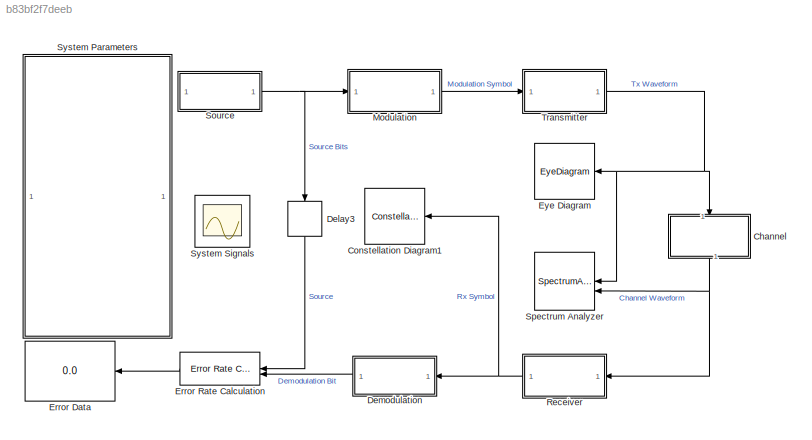
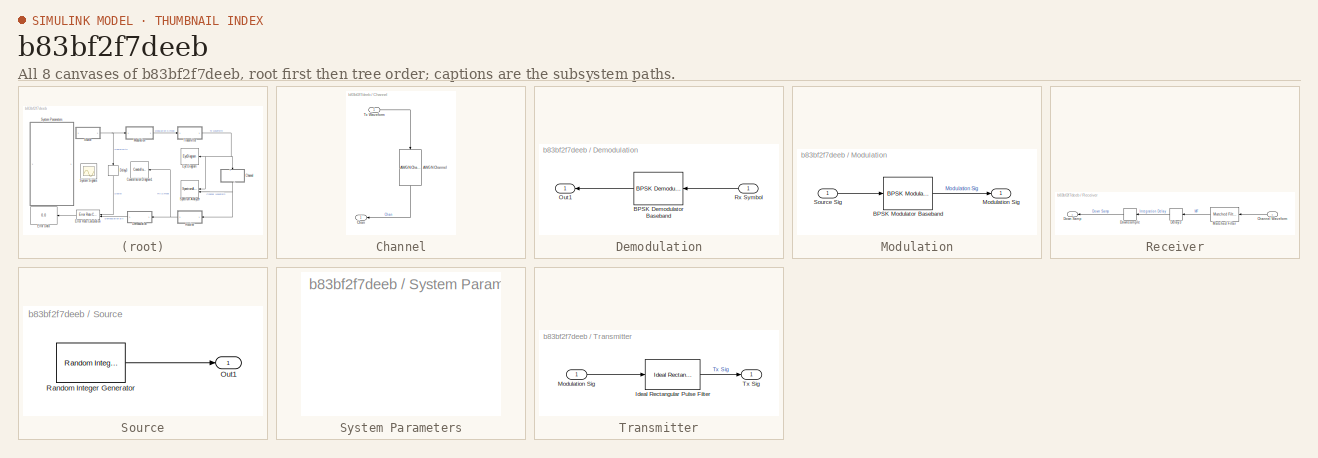
[diagram: thumbnail index - all 8 canvases of the model, root first then tree order]
MODEL slx_b83bf2f7deeb
KIND model
CONFIG AbsTol = auto
CONFIG EnableMultiTasking = off
CONFIG FixedStep = SimPara.SysPeriod
CONFIG MaxStep = auto
CONFIG MinStep = auto
CONFIG RelTol = 1e-3
CONFIG SampleTimeConstraint = Unconstrained
CONFIG SolverName = FixedStepDiscrete
CONFIG StartTime = 0.0
CONFIG StopTime = 100
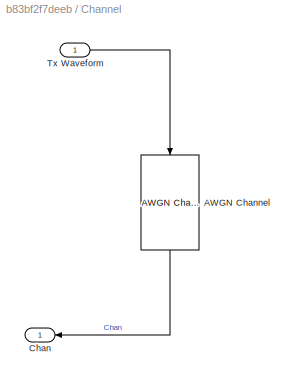
BLOCK [SubSystem] Channel
  NameLocation = top
BLOCK [Reference] Channel/AWGN Channel  REF=commchan3/AWGN
Channel
  NameLocation = left
  SourceBlock = commchan3/AWGN\nChannel
  SourceType = AWGN Channel
  UserDataPersistent = on
BLOCK [Outport] Channel/Chan
BLOCK [Inport] Channel/Tx Waveform
BLOCK [ConstellationDiagram] Constellation Diagram1
  GraphicalSettings = {"Style":{"BackgroundColor":[0.15686274509803921,0.15686274509803921,0.15686274509803921],"AxesColor":[0,0,0],"LabelsColor":[0.68627450980392157,0.68627450980392157,0.68627450980392157],"LineStyle":["-","NONE"],"LineColor":[[1,1,0.066666666666666666],[1,0,0]],"LineWidth":[1,1],"Marker":[".","+"],"IsRefLine":[false,true],"FontSize":"small"},"ReferenceConstellation":{"AverageReferencePower":1,"RefCo...<+144ch>
  ReferenceConstellation = BPSK
  ScopeFrameLocation = window
  SymbolsToDisplay = 100
  SymbolsToDisplaySource = Property
  Visible = on
  WasSavedAsWebScope = on
  WindowPosition = [29.000000,75.000000,770.000000,662.000000,]
  XLimits = [-1.47,1.47]
  YLimits = [-1.38,1.38]
BLOCK [Delay] Delay3
  DelayLength = 1
  InitialCondition = 0
  InputPortMap = u0
  NameLocation = right
BLOCK [SubSystem] Demodulation
BLOCK [Reference] Demodulation/BPSK Demodulator Baseband  REF=commdigbbndpm3/BPSK
Demodulator
Baseband
  SourceBlock = commdigbbndpm3/BPSK\nDemodulator\nBaseband
  SourceType = BPSK Demodulator Baseband
BLOCK [Outport] Demodulation/Out1
BLOCK [Inport] Demodulation/Rx Symbol
BLOCK [Display] Error Data
  Decimation = 1
BLOCK [Reference] Error Rate Calculation  REF=commsink2/Error Rate
Calculation
  SourceBlock = commsink2/Error Rate\nCalculation
  SourceType = Error Rate Calculation
BLOCK [EyeDiagram] Eye Diagram
  ScopeSpecificationString = comm.scopes.EyeDiagramBlockCfg('CurrentConfiguration', extmgr.ConfigurationSet(extmgr.Configuration('Core','General UI',true),extmgr.Configuration('Core','Source UI',true),extmgr.Configuration('Sources','WiredSimulink',true),extmgr.Configuration('Sources','Simulink',false),extmgr.Configuration('Sources','File',false),extmgr.Configuration('Sources','Workspace',false),extmgr.Configuration('Sources',...<+1258ch>
BLOCK [SubSystem] Modulation
BLOCK [Reference] Modulation/BPSK Modulator Baseband  REF=commdigbbndpm3/BPSK
Modulator
Baseband
  SourceBlock = commdigbbndpm3/BPSK\nModulator\nBaseband
  SourceType = BPSK Modulator Baseband
BLOCK [Outport] Modulation/Modulation Sig
BLOCK [Inport] Modulation/Source Sig
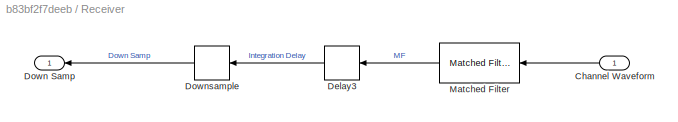
BLOCK [SubSystem] Receiver
BLOCK [Inport] Receiver/Channel Waveform
  NameLocation = top
BLOCK [Delay] Receiver/Delay3
  DelayLength = 1
  InitialCondition = 0
  InputPortMap = u0
BLOCK [Outport] Receiver/Down Samp
BLOCK [DownSample] Receiver/Downsample
  InputProcessing = Elements as channels (sample based)
  N = SimPara.SampWaveform
  RateOptions = Allow multirate processing
  UserDataPersistent = on
BLOCK [Reference] Receiver/Matched Filter  REF=phaseddetectlib/Matched Filter
  SourceBlock = phaseddetectlib/Matched Filter
  SourceType = phased.internal.SimulinkMatchedFilter
BLOCK [SubSystem] Source
BLOCK [Outport] Source/Out1
BLOCK [Reference] Source/Random Integer Generator  REF=commrandsrc3/Random Integer
Generator
  SourceBlock = commrandsrc3/Random Integer\nGenerator
  SourceType = Random Integer Generator
BLOCK [SpectrumAnalyzer] Spectrum Analyzer
  AveragingMethod = Exponential
  FrequencySpan = Start and stop frequencies
  GraphicalSettings = {"GraphicalSettings":{"Style":{"BackgroundColor":[0.1568627450980392,0.1568627450980392,0.1568627450980392],"AxesColor":[0,0,0],"LabelsColor":[0.6862745098039216,0.6862745098039216,0.6862745098039216],"PreserveColors":false,"Visible":[true,true,true,true,true,true,true],"LineStyle":["-","-","-","-","-","-","-"],"LineColor":[[1,1,0.06666666666666667],[0.07058823529411765,0.6235294117647059,1],[0.96...<+1346ch>
  NumInputPorts = 2
  OpenAtSimulationStart = off
  SampleRate = SimPara.SampWaveform
  SampleRateSource = Property
  ScopeFrameLocation = window
  ScopeSpecificationString = spbscopes.SpectrumAnalyzerBlockCfg('CurrentConfiguration', extmgr.ConfigurationSet(extmgr.Configuration('Core','General UI',true),extmgr.Configuration('Core','Source UI',true),extmgr.Configuration('Sources','WiredSimulink',true),extmgr.Configuration('Sources','SimulinkEvent',false),extmgr.Configuration('Sources','Simulink',false),extmgr.Configuration('Sources','File',false),extmgr.Configuration('S...<+4121ch>
  ShowLegend = on
  StartFrequency = 0
  StopFrequency = SimPara.SampWaveform/2
  Visible = on
  WasSavedAsWebScope = on
  WindowPosition = [97.000000,43.000000,1440.000000,786.000000,]
  YLimits = [-82.64773538,8.16803679]
BLOCK [SubSystem] System Parameters
  NameLocation = top
BLOCK [Scope] System Signals
  Floating = on
  NumInputPorts = 1
  ScopeSpecificationString = Simulink.scopes.TimeScopeBlockCfg('CurrentConfiguration', extmgr.ConfigurationSet(extmgr.Configuration('Core','General UI',true),extmgr.Configuration('Core','Source UI',true),extmgr.Configuration('Sources','WiredSimulink',true,'DataLoggingVariableName','ScopeData1'),extmgr.Configuration('Visuals','Time Domain',true,'PlotType','Stem','SerializedDisplays',{struct('MinYLimReal','-0.125','MaxYLimReal'...<+5403ch>
BLOCK [SubSystem] Transmitter
BLOCK [Reference] Transmitter/Ideal Rectangular Pulse Filter  REF=commfilt2/Ideal Rectangular
Pulse Filter
  SourceBlock = commfilt2/Ideal Rectangular\nPulse Filter
  SourceType = Ideal Rectangular Pulse Filter
  UserDataPersistent = on
BLOCK [Inport] Transmitter/Modulation Sig
BLOCK [Outport] Transmitter/Tx Sig
LINE Channel/AWGN Channel:1 -> Channel/Chan:1
LINE Channel/Tx Waveform:1 -> Channel/AWGN Channel:1
NET Channel:1 -> Receiver:1, Spectrum Analyzer:2
LINE Delay3:1 -> Error Rate Calculation:1
LINE Demodulation/BPSK Demodulator Baseband:1 -> Demodulation/Out1:1
LINE Demodulation/Rx Symbol:1 -> Demodulation/BPSK Demodulator Baseband:1
LINE Demodulation:1 -> Error Rate Calculation:2
LINE Error Rate Calculation:1 -> Error Data:1
LINE Modulation/BPSK Modulator Baseband:1 -> Modulation/Modulation Sig:1
LINE Modulation/Source Sig:1 -> Modulation/BPSK Modulator Baseband:1
LINE Modulation:1 -> Transmitter:1
LINE Receiver/Channel Waveform:1 -> Receiver/Matched Filter:1
LINE Receiver/Delay3:1 -> Receiver/Downsample:1
LINE Receiver/Downsample:1 -> Receiver/Down Samp:1
LINE Receiver/Matched Filter:1 -> Receiver/Delay3:1
NET Receiver:1 -> Constellation Diagram1:1, Demodulation:1
LINE Source/Random Integer Generator:1 -> Source/Out1:1
NET Source:1 -> Delay3:1, Modulation:1
LINE Transmitter/Ideal Rectangular Pulse Filter:1 -> Transmitter/Tx Sig:1
LINE Transmitter/Modulation Sig:1 -> Transmitter/Ideal Rectangular Pulse Filter:1
NET Transmitter:1 -> Channel:1, Eye Diagram:1, Spectrum Analyzer:1
note: NET lines group one-source signal fan-out (src -> all destinations, sorted); 1:1 wires keep LINE
